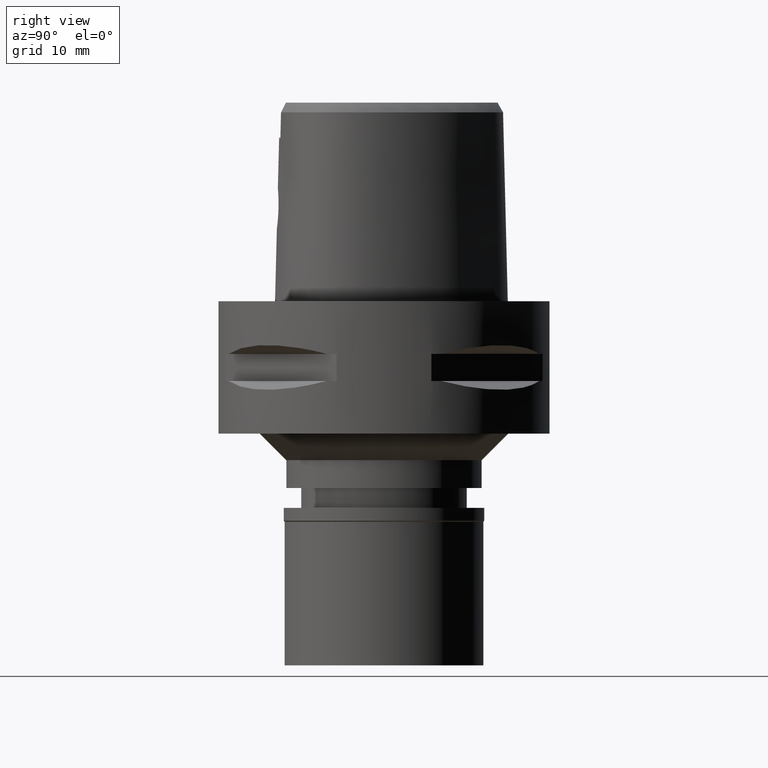
[diagram: clean part render]
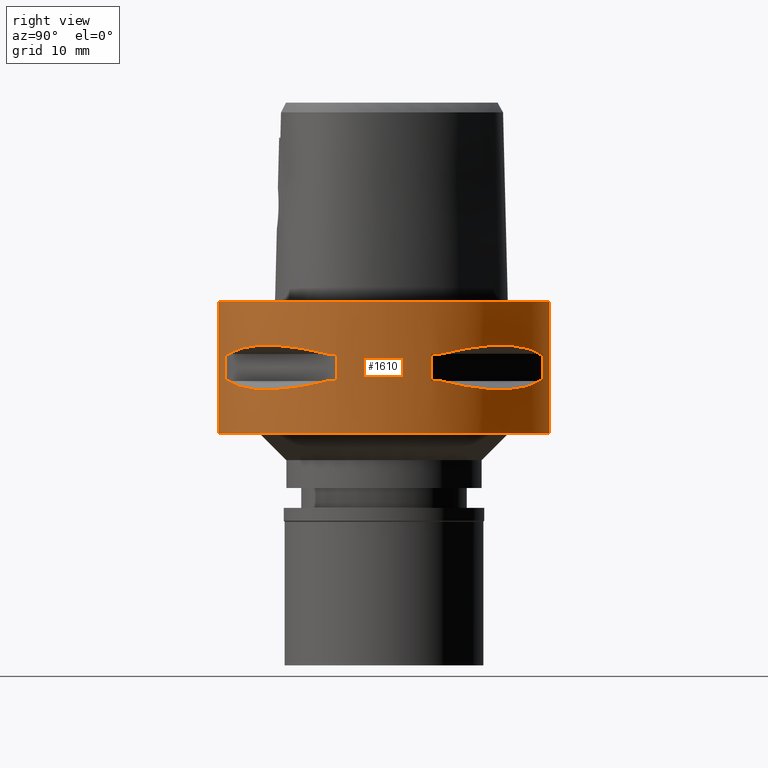
[diagram: same view with one face highlighted and labeled with its STEP entity id]
A machine part, right view. The second image highlights one B-rep face of the part: STEP entity #1610.
In plain terms, the highlighted cylindrical surface (partial cylindrical patch) has radius 25 mm, axis along (0, 0, -1).
Its self-contained STEP definition (entity closure, byte-faithful):
#12 = ORIENTED_EDGE ( 'NONE', *, *, #2781, .T. ) ;
#43 = LINE ( 'NONE', #1184, #1874 ) ;
#62 = B_SPLINE_CURVE_WITH_KNOTS ( 'NONE', 3,
 ( #2774, #4715, #2866, #3515, #2102, #3596, #4743, #1715, #221, #3174, #3202, #1409, #196, #4346, #3995, #4684, #4657, #2806, #1665, #3938, #4633, #2839, #1001, #1300 ),
 .UNSPECIFIED., .F., .F.,
 ( 4, 1, 1, 1, 1, 1, 2, 2, 2, 1, 1, 1, 1, 1, 2, 2, 4 ),
 ( 0.0000000000000000000, 0.1250000000000068834, 0.1875000000000101308, 0.2187500000000117406, 0.2343750000000125733, 0.2421875000000129341, 0.2460937500000130174, 0.2500000000000131006, 0.5000000000000111022, 0.6250000000000101030, 0.6875000000000099920, 0.7187500000000099920, 0.7343750000000099920, 0.7421875000000098810, 0.7460937500000098810, 0.7500000000000098810, 1.000000000000000000 ),
 .UNSPECIFIED. ) ;
#153 = CARTESIAN_POINT ( 'NONE',  ( 14.85488513038957592, 20.11654071401955335, -13.22076716108393413 ) ) ;
#182 = CARTESIAN_POINT ( 'NONE',  ( 21.01958685664017068, 13.53433973752500918, -13.05032380590188446 ) ) ;
#193 = EDGE_CURVE ( 'NONE', #3006, #889, #2345, .T. ) ;
#196 = CARTESIAN_POINT ( 'NONE',  ( 18.30096971348435630, -17.05439749817190176, -13.37751056790094850 ) ) ;
#221 = CARTESIAN_POINT ( 'NONE',  ( 13.53433973752400554, -21.01958685664054372, -13.05032380590162333 ) ) ;
#225 = VERTEX_POINT ( 'NONE', #2671 ) ;
#242 = CYLINDRICAL_SURFACE ( 'NONE', #4385, 25.00000000000000000 ) ;
#441 = AXIS2_PLACEMENT_3D ( 'NONE', #1394, #1728, #648 ) ;
#469 = B_SPLINE_CURVE_WITH_KNOTS ( 'NONE', 3,
 ( #4585, #976, #1644, #3131, #4614, #2706, #3084, #1261, #533, #2778 ),
 .UNSPECIFIED., .F., .F.,
 ( 4, 2, 2, 2, 4 ),
 ( 0.0000000000000000000, 0.2500000000000000000, 0.5000000000000000000, 0.7500000000000000000, 1.000000000000000000 ),
 .UNSPECIFIED. ) ;
#533 = CARTESIAN_POINT ( 'NONE',  ( 10.36318218122983481, 22.82437128822192207, -7.507495686399606960 ) ) ;
#555 = ORIENTED_EDGE ( 'NONE', *, *, #1544, .T. ) ;
#585 = CARTESIAN_POINT ( 'NONE',  ( 7.159921374230999724, -23.95277699797999915, -12.05000000000000071 ) ) ;
#619 = CARTESIAN_POINT ( 'NONE',  ( 20.02826730452214932, 15.06560254769159712, -13.27075471794772277 ) ) ;
#639 = DIRECTION ( 'NONE',  ( 0.0000000000000000000, 0.0000000000000000000, -1.000000000000000000 ) ) ;
#648 = DIRECTION ( 'NONE',  ( 0.9581110799190402094, -0.2863968549694120291, 0.0000000000000000000 ) ) ;
#668 = AXIS2_PLACEMENT_3D ( 'NONE', #3122, #4604, #1277 ) ;
#672 = EDGE_CURVE ( 'NONE', #1713, #1457, #2820, .T. ) ;
#741 = CIRCLE ( 'NONE', #2915, 25.00000000000001066 ) ;
#753 = CARTESIAN_POINT ( 'NONE',  ( 7.159921374235000080, -23.95277699797999915, -7.950000000000000178 ) ) ;
#758 = CARTESIAN_POINT ( 'NONE',  ( 8.646484890756999775, -23.45715880140000209, -12.05000000000000071 ) ) ;
#810 = CARTESIAN_POINT ( 'NONE',  ( 23.95277699797999915, 7.159921374230999724, -12.05000000000000071 ) ) ;
#819 = VERTEX_POINT ( 'NONE', #4284 ) ;
#870 = CARTESIAN_POINT ( 'NONE',  ( 0.0000000000000000000, -25.00000000000000000, 0.0000000000000000000 ) ) ;
#876 = DIRECTION ( 'NONE',  ( 0.2863968549694120291, -0.9581110799190402094, 0.0000000000000000000 ) ) ;
#879 = CARTESIAN_POINT ( 'NONE',  ( 13.62920640916679993, 20.95817024473859291, -13.06397973560673265 ) ) ;
#888 = B_SPLINE_CURVE_WITH_KNOTS ( 'NONE', 3,
 ( #4347, #2432, #1745, #4685, #1640, #3154, #4658, #1688, #2383, #4274 ),
 .UNSPECIFIED., .F., .F.,
 ( 4, 2, 2, 2, 4 ),
 ( 0.0000000000000000000, 0.2500000000000000000, 0.5000000000000000000, 0.7500000000000000000, 1.000000000000000000 ),
 .UNSPECIFIED. ) ;
#889 = VERTEX_POINT ( 'NONE', #2461 ) ;
#907 = CARTESIAN_POINT ( 'NONE',  ( 21.20561591939435786, 13.24197703503935486, -13.00691327926270446 ) ) ;
#929 = CARTESIAN_POINT ( 'NONE',  ( 21.09754014381971388, 13.41274673326716282, -13.03250796600833716 ) ) ;
#968 = FACE_OUTER_BOUND ( 'NONE', #3853, .T. ) ;
#976 = CARTESIAN_POINT ( 'NONE',  ( 22.82438450745431524, 10.36314631860615876, -7.507504930525399800 ) ) ;
#997 = EDGE_CURVE ( 'NONE', #3188, #3670, #741, .T. ) ;
#1001 = CARTESIAN_POINT ( 'NONE',  ( 22.81626994452193458, -10.38516041956038727, -12.49816953211166037 ) ) ;
#1006 = DIRECTION ( 'NONE',  ( 0.2863968549694120291, 0.9581110799190402094, 0.0000000000000000000 ) ) ;
#1036 = CARTESIAN_POINT ( 'NONE',  ( 0.0000000000000000000, 1.252201352127999809E-14, -7.950000000000000178 ) ) ;
#1057 = AXIS2_PLACEMENT_3D ( 'NONE', #4667, #2709, #4216 ) ;
#1058 = B_SPLINE_CURVE_WITH_KNOTS ( 'NONE', 3,
 ( #3110, #2787, #4311, #4621, #3554, #907, #929, #2391, #182, #2375, #619, #3575, #3953, #1608, #153, #3089, #4568, #4217, #2008, #879, #1265, #3872, #1650, #3895 ),
 .UNSPECIFIED., .F., .F.,
 ( 4, 1, 1, 1, 1, 1, 2, 2, 2, 1, 1, 1, 1, 1, 2, 2, 4 ),
 ( 0.0000000000000000000, 0.1249999999999982236, 0.1874999999999974465, 0.2187499999999970302, 0.2343749999999969469, 0.2421874999999968081, 0.2460937499999968359, 0.2499999999999968914, 0.4999999999999973355, 0.6249999999999973355, 0.6874999999999976685, 0.7187499999999978906, 0.7343749999999980016, 0.7421874999999980016, 0.7460937499999978906, 0.7499999999999978906, 1.000000000000000000 ),
 .UNSPECIFIED. ) ;
#1082 = CARTESIAN_POINT ( 'NONE',  ( 0.0000000000000000000, 25.00000000000000000, 0.0000000000000000000 ) ) ;
#1156 = DIRECTION ( 'NONE',  ( 0.0000000000000000000, 1.000000000000000000, 0.0000000000000000000 ) ) ;
#1172 = EDGE_CURVE ( 'NONE', #3543, #819, #1355, .T. ) ;
#1184 = CARTESIAN_POINT ( 'NONE',  ( 7.159921374230999724, 23.95277699797999915, -12.05000000000000071 ) ) ;
#1228 = EDGE_CURVE ( 'NONE', #3828, #225, #1998, .T. ) ;
#1243 = CARTESIAN_POINT ( 'NONE',  ( 8.646484890751999330, -23.45715880140000209, -7.949999999998999201 ) ) ;
#1254 = EDGE_CURVE ( 'NONE', #3820, #1457, #3219, .T. ) ;
#1261 = CARTESIAN_POINT ( 'NONE',  ( 11.99636231264435615, 22.00752022556853404, -7.175618606703327629 ) ) ;
#1265 = CARTESIAN_POINT ( 'NONE',  ( 13.60713573003037880, 20.97251445226597966, -13.06082541678103404 ) ) ;
#1277 = DIRECTION ( 'NONE',  ( 0.0000000000000000000, -1.000000000000000000, 0.0000000000000000000 ) ) ;
#1296 = ORIENTED_EDGE ( 'NONE', *, *, #4469, .F. ) ;
#1300 = CARTESIAN_POINT ( 'NONE',  ( 23.45715880140000209, -8.646484890751999330, -12.05000000000000071 ) ) ;
#1312 = EDGE_CURVE ( 'NONE', #225, #2145, #4779, .T. ) ;
#1322 = VECTOR ( 'NONE', #639, 1000.000000000000000 ) ;
#1337 = DIRECTION ( 'NONE',  ( 0.0000000000000000000, 0.0000000000000000000, 1.000000000000000000 ) ) ;
#1355 = CIRCLE ( 'NONE', #1057, 24.99999999999999645 ) ;
#1394 = CARTESIAN_POINT ( 'NONE',  ( 0.0000000000000000000, 1.252201352127999809E-14, -12.05000000000000071 ) ) ;
#1409 = CARTESIAN_POINT ( 'NONE',  ( 16.43106916202457057, -18.92421359264944769, -13.37747608848233760 ) ) ;
#1440 = LINE ( 'NONE', #1082, #4749 ) ;
#1457 = VERTEX_POINT ( 'NONE', #3205 ) ;
#1465 = DIRECTION ( 'NONE',  ( 0.0000000000000000000, -1.000000000000000000, 0.0000000000000000000 ) ) ;
#1498 = CARTESIAN_POINT ( 'NONE',  ( 0.0000000000000000000, 1.252201352127999809E-14, -12.05000000000000071 ) ) ;
#1529 = EDGE_CURVE ( 'NONE', #3781, #4326, #3224, .T. ) ;
#1544 = EDGE_CURVE ( 'NONE', #1775, #1945, #2735, .T. ) ;
#1601 = CARTESIAN_POINT ( 'NONE',  ( 0.0000000000000000000, 1.252201352127999809E-14, 0.0000000000000000000 ) ) ;
#1608 = CARTESIAN_POINT ( 'NONE',  ( 16.07509500019029502, 19.18226349638565509, -13.33749867751885532 ) ) ;
#1610 = ADVANCED_FACE ( 'NONE', ( #968, #2429, #2069 ), #242, .T. ) ;
#1636 = DIRECTION ( 'NONE',  ( 0.0000000000000000000, 0.0000000000000000000, -1.000000000000000000 ) ) ;
#1640 = CARTESIAN_POINT ( 'NONE',  ( 16.42437865151175558, -18.93096040781560774, -6.622505547253058289 ) ) ;
#1641 = ORIENTED_EDGE ( 'NONE', *, *, #1254, .T. ) ;
#1644 = CARTESIAN_POINT ( 'NONE',  ( 22.00754773658079344, 11.99631184311074428, -7.175632472892015556 ) ) ;
#1650 = CARTESIAN_POINT ( 'NONE',  ( 10.38516041958474645, 22.81626994451295332, -12.49816953211793802 ) ) ;
#1665 = CARTESIAN_POINT ( 'NONE',  ( 20.92801700160322298, -13.67544437571097404, -13.07054629644096444 ) ) ;
#1688 = CARTESIAN_POINT ( 'NONE',  ( 22.00752022556849496, -11.99636231264437214, -7.175618606703327629 ) ) ;
#1711 = CARTESIAN_POINT ( 'NONE',  ( 0.0000000000000000000, 1.252201352127999809E-14, 2.250000000000000000 ) ) ;
#1713 = VERTEX_POINT ( 'NONE', #4508 ) ;
#1715 = CARTESIAN_POINT ( 'NONE',  ( 13.48572973711064193, -21.05082155772163688, -13.04323036965292637 ) ) ;
#1726 = DIRECTION ( 'NONE',  ( 0.0000000000000000000, 0.0000000000000000000, 1.000000000000000000 ) ) ;
#1728 = DIRECTION ( 'NONE',  ( 0.0000000000000000000, 0.0000000000000000000, -1.000000000000000000 ) ) ;
#1745 = CARTESIAN_POINT ( 'NONE',  ( 11.99631184311069099, -22.00754773658079344, -7.175632472892012892 ) ) ;
#1753 = DIRECTION ( 'NONE',  ( 0.3458593956303108730, 0.9382863520558295534, 0.0000000000000000000 ) ) ;
#1768 = DIRECTION ( 'NONE',  ( 0.0000000000000000000, 0.0000000000000000000, -1.000000000000000000 ) ) ;
#1775 = VERTEX_POINT ( 'NONE', #2244 ) ;
#1832 = CIRCLE ( 'NONE', #441, 24.99999999999999645 ) ;
#1834 = DIRECTION ( 'NONE',  ( 0.3458593956303108730, -0.9382863520558295534, 0.0000000000000000000 ) ) ;
#1845 = EDGE_CURVE ( 'NONE', #819, #3188, #469, .T. ) ;
#1852 = ORIENTED_EDGE ( 'NONE', *, *, #1312, .T. ) ;
#1863 = ORIENTED_EDGE ( 'NONE', *, *, #193, .T. ) ;
#1874 = VECTOR ( 'NONE', #4219, 1000.000000000000000 ) ;
#1892 = AXIS2_PLACEMENT_3D ( 'NONE', #3562, #1768, #3251 ) ;
#1906 = EDGE_CURVE ( 'NONE', #3781, #2972, #2428, .T. ) ;
#1945 = VERTEX_POINT ( 'NONE', #810 ) ;
#1998 = LINE ( 'NONE', #870, #2828 ) ;
#2008 = CARTESIAN_POINT ( 'NONE',  ( 13.67544437571146609, 20.92801700160250533, -13.07054629644086674 ) ) ;
#2050 = EDGE_LOOP ( 'NONE', ( #1641, #4588, #3201, #4444, #12, #4323, #2507, #4577 ) ) ;
#2069 = FACE_BOUND ( 'NONE', #2532, .T. ) ;
#2102 = CARTESIAN_POINT ( 'NONE',  ( 12.89853354821786624, -21.41803043592453548, -12.95342092614003349 ) ) ;
#2145 = VERTEX_POINT ( 'NONE', #4193 ) ;
#2183 = ORIENTED_EDGE ( 'NONE', *, *, #3015, .F. ) ;
#2202 = CARTESIAN_POINT ( 'NONE',  ( 7.159921374230999724, 23.95277699797999915, -7.950000000000000178 ) ) ;
#2221 = ORIENTED_EDGE ( 'NONE', *, *, #4348, .F. ) ;
#2244 = CARTESIAN_POINT ( 'NONE',  ( 23.45715880140000209, 8.646484890756999775, -12.05000000000000071 ) ) ;
#2289 = ORIENTED_EDGE ( 'NONE', *, *, #3361, .T. ) ;
#2338 = CARTESIAN_POINT ( 'NONE',  ( 0.0000000000000000000, 1.252201352127999809E-14, -7.950000000000000178 ) ) ;
#2342 = CARTESIAN_POINT ( 'NONE',  ( 0.0000000000000000000, 25.00000000000000000, 0.0000000000000000000 ) ) ;
#2345 = CIRCLE ( 'NONE', #3909, 24.99999999999999645 ) ;
#2375 = CARTESIAN_POINT ( 'NONE',  ( 21.00321793043583796, 13.55971422200765630, -13.05400030967367897 ) ) ;
#2379 = VERTEX_POINT ( 'NONE', #2627 ) ;
#2383 = CARTESIAN_POINT ( 'NONE',  ( 22.82437128822188654, -10.36318218122986856, -7.507495686399606960 ) ) ;
#2391 = CARTESIAN_POINT ( 'NONE',  ( 21.05082155772089436, 13.48572973711263323, -13.04323036965343618 ) ) ;
#2428 = CIRCLE ( 'NONE', #3525, 24.99999999999999645 ) ;
#2429 = FACE_BOUND ( 'NONE', #2050, .T. ) ;
#2432 = CARTESIAN_POINT ( 'NONE',  ( 10.36314631860608593, -22.82438450745432945, -7.507504930525394471 ) ) ;
#2435 = CIRCLE ( 'NONE', #2678, 25.00000000000000000 ) ;
#2461 = CARTESIAN_POINT ( 'NONE',  ( 8.646484890751999330, 23.45715880140000209, -12.05000000000000071 ) ) ;
#2491 = CARTESIAN_POINT ( 'NONE',  ( 0.0000000000000000000, 1.252201352127999809E-14, -12.05000000000000071 ) ) ;
#2507 = ORIENTED_EDGE ( 'NONE', *, *, #1906, .T. ) ;
#2532 = EDGE_LOOP ( 'NONE', ( #4148, #2548, #1863, #2183, #555, #2221, #3717, #2744 ) ) ;
#2539 = DIRECTION ( 'NONE',  ( 0.0000000000000000000, 0.0000000000000000000, -1.000000000000000000 ) ) ;
#2548 = ORIENTED_EDGE ( 'NONE', *, *, #3898, .F. ) ;
#2627 = CARTESIAN_POINT ( 'NONE',  ( 23.45715880140000209, -8.646484890751999330, -12.05000000000000071 ) ) ;
#2671 = CARTESIAN_POINT ( 'NONE',  ( 0.0000000000000000000, -25.00000000000000000, -20.00000000000000000 ) ) ;
#2678 = AXIS2_PLACEMENT_3D ( 'NONE', #1601, #4096, #1156 ) ;
#2706 = CARTESIAN_POINT ( 'NONE',  ( 16.42437865151178045, 18.93096040781560063, -6.622496303226939496 ) ) ;
#2709 = DIRECTION ( 'NONE',  ( 0.0000000000000000000, 0.0000000000000000000, 1.000000000000000000 ) ) ;
#2735 = CIRCLE ( 'NONE', #1892, 25.00000000000001066 ) ;
#2744 = ORIENTED_EDGE ( 'NONE', *, *, #1845, .T. ) ;
#2774 = CARTESIAN_POINT ( 'NONE',  ( 8.646484890756999775, -23.45715880140000209, -12.05000000000000071 ) ) ;
#2778 = CARTESIAN_POINT ( 'NONE',  ( 8.646484890751999330, 23.45715880140000209, -7.949999999998999201 ) ) ;
#2781 = EDGE_CURVE ( 'NONE', #4412, #4326, #3846, .T. ) ;
#2787 = CARTESIAN_POINT ( 'NONE',  ( 23.13678124604550845, 9.515641234313701347, -12.27403800213050111 ) ) ;
#2806 = CARTESIAN_POINT ( 'NONE',  ( 20.88268233906207172, -13.74471461761599400, -13.08031795579753087 ) ) ;
#2820 = LINE ( 'NONE', #4330, #3519 ) ;
#2828 = VECTOR ( 'NONE', #1636, 1000.000000000000000 ) ;
#2839 = CARTESIAN_POINT ( 'NONE',  ( 21.99328990740119139, -12.03062603421341770, -12.83394786307044022 ) ) ;
#2846 = DIRECTION ( 'NONE',  ( 0.0000000000000000000, 0.0000000000000000000, -1.000000000000000000 ) ) ;
#2860 = CARTESIAN_POINT ( 'NONE',  ( 7.159921374230999724, -23.95277699797999915, -7.950000000000000178 ) ) ;
#2866 = CARTESIAN_POINT ( 'NONE',  ( 10.78455809745186755, -22.58788056562029922, -12.56798337782941566 ) ) ;
#2915 = AXIS2_PLACEMENT_3D ( 'NONE', #1036, #1337, #1753 ) ;
#2972 = VERTEX_POINT ( 'NONE', #1243 ) ;
#2991 = AXIS2_PLACEMENT_3D ( 'NONE', #2338, #3857, #3463 ) ;
#3006 = VERTEX_POINT ( 'NONE', #3164 ) ;
#3015 = EDGE_CURVE ( 'NONE', #1775, #889, #1058, .T. ) ;
#3062 = VECTOR ( 'NONE', #4655, 1000.000000000000000 ) ;
#3071 = CARTESIAN_POINT ( 'NONE',  ( 0.0000000000000000000, -25.00000000000000000, 0.0000000000000000000 ) ) ;
#3084 = CARTESIAN_POINT ( 'NONE',  ( 15.02698525050126044, 20.06074199764951871, -6.733118915116992120 ) ) ;
#3089 = CARTESIAN_POINT ( 'NONE',  ( 14.22535762328483067, 20.56020460723039278, -13.14488865845230592 ) ) ;
#3110 = CARTESIAN_POINT ( 'NONE',  ( 23.45715880140000209, 8.646484890756999775, -12.05000000000000071 ) ) ;
#3122 = CARTESIAN_POINT ( 'NONE',  ( 0.0000000000000000000, 1.252201352127999809E-14, -20.00000000000000000 ) ) ;
#3131 = CARTESIAN_POINT ( 'NONE',  ( 20.06077645874710313, 15.02693924547574866, -6.733132781305681824 ) ) ;
#3153 = EDGE_CURVE ( 'NONE', #1713, #2379, #1832, .T. ) ;
#3154 = CARTESIAN_POINT ( 'NONE',  ( 18.93096040781557221, -16.42437865151179466, -6.622496303226939496 ) ) ;
#3164 = CARTESIAN_POINT ( 'NONE',  ( 7.159921374235000080, 23.95277699797999915, -12.05000000000000071 ) ) ;
#3174 = CARTESIAN_POINT ( 'NONE',  ( 13.55971422200820520, -21.00321793043535479, -13.05400030967370206 ) ) ;
#3179 = LINE ( 'NONE', #3971, #1322 ) ;
#3188 = VERTEX_POINT ( 'NONE', #3607 ) ;
#3198 = DIRECTION ( 'NONE',  ( 0.0000000000000000000, 0.0000000000000000000, -1.000000000000000000 ) ) ;
#3201 = ORIENTED_EDGE ( 'NONE', *, *, #3153, .T. ) ;
#3202 = CARTESIAN_POINT ( 'NONE',  ( 15.06560254765663132, -20.02826730455345583, -13.27075471794622885 ) ) ;
#3205 = CARTESIAN_POINT ( 'NONE',  ( 23.95277699797999915, -7.159921374230999724, -7.950000000000000178 ) ) ;
#3219 = CIRCLE ( 'NONE', #2991, 25.00000000000001066 ) ;
#3224 = LINE ( 'NONE', #2860, #3062 ) ;
#3251 = DIRECTION ( 'NONE',  ( 0.9382863520558295534, 0.3458593956303108730, 0.0000000000000000000 ) ) ;
#3361 = EDGE_CURVE ( 'NONE', #3406, #3828, #2435, .T. ) ;
#3406 = VERTEX_POINT ( 'NONE', #2342 ) ;
#3424 = ORIENTED_EDGE ( 'NONE', *, *, #1228, .T. ) ;
#3463 = DIRECTION ( 'NONE',  ( 0.9382863520558295534, -0.3458593956303108730, 0.0000000000000000000 ) ) ;
#3515 = CARTESIAN_POINT ( 'NONE',  ( 12.20403021317722292, -21.82791133048418786, -12.83722430138600323 ) ) ;
#3519 = VECTOR ( 'NONE', #1726, 1000.000000000000000 ) ;
#3525 = AXIS2_PLACEMENT_3D ( 'NONE', #4564, #4212, #876 ) ;
#3543 = VERTEX_POINT ( 'NONE', #4371 ) ;
#3554 = CARTESIAN_POINT ( 'NONE',  ( 21.41803043591995959, 12.89853354823032738, -12.95342092614324869 ) ) ;
#3562 = CARTESIAN_POINT ( 'NONE',  ( 0.0000000000000000000, 1.252201352127999809E-14, -12.05000000000000071 ) ) ;
#3575 = CARTESIAN_POINT ( 'NONE',  ( 18.92421359264142211, 16.43106916203626611, -13.37747608848383329 ) ) ;
#3596 = CARTESIAN_POINT ( 'NONE',  ( 13.24197703503267931, -21.20561591939681634, -13.00691327926098495 ) ) ;
#3607 = CARTESIAN_POINT ( 'NONE',  ( 8.646484890751999330, 23.45715880140000209, -7.949999999998999201 ) ) ;
#3646 = EDGE_CURVE ( 'NONE', #4412, #2379, #62, .T. ) ;
#3670 = VERTEX_POINT ( 'NONE', #2202 ) ;
#3688 = DIRECTION ( 'NONE',  ( 0.0000000000000000000, 0.0000000000000000000, -1.000000000000000000 ) ) ;
#3717 = ORIENTED_EDGE ( 'NONE', *, *, #1172, .T. ) ;
#3771 = AXIS2_PLACEMENT_3D ( 'NONE', #1498, #3688, #1834 ) ;
#3781 = VERTEX_POINT ( 'NONE', #753 ) ;
#3820 = VERTEX_POINT ( 'NONE', #3939 ) ;
#3828 = VERTEX_POINT ( 'NONE', #3071 ) ;
#3846 = CIRCLE ( 'NONE', #3771, 25.00000000000001066 ) ;
#3853 = EDGE_LOOP ( 'NONE', ( #2289, #3424, #1852, #1296 ) ) ;
#3857 = DIRECTION ( 'NONE',  ( 0.0000000000000000000, 0.0000000000000000000, 1.000000000000000000 ) ) ;
#3872 = CARTESIAN_POINT ( 'NONE',  ( 12.03062603423778754, 21.99328990739221013, -12.83394786307672675 ) ) ;
#3895 = CARTESIAN_POINT ( 'NONE',  ( 8.646484890751999330, 23.45715880140000209, -12.05000000000000071 ) ) ;
#3898 = EDGE_CURVE ( 'NONE', #3006, #3670, #43, .T. ) ;
#3909 = AXIS2_PLACEMENT_3D ( 'NONE', #2491, #2846, #1006 ) ;
#3938 = CARTESIAN_POINT ( 'NONE',  ( 20.95817024473895174, -13.62920640916654591, -13.06397973560678061 ) ) ;
#3939 = CARTESIAN_POINT ( 'NONE',  ( 23.45715880140000209, -8.646484890751999330, -7.949999999998999201 ) ) ;
#3953 = CARTESIAN_POINT ( 'NONE',  ( 17.05439749817592343, 18.30096971347850499, -13.37751056790020598 ) ) ;
#3971 = CARTESIAN_POINT ( 'NONE',  ( 23.95277699797999915, 7.159921374230999724, -7.950000000000000178 ) ) ;
#3995 = CARTESIAN_POINT ( 'NONE',  ( 20.11654071402723432, -14.85488513038430192, -13.22076716108491290 ) ) ;
#4096 = DIRECTION ( 'NONE',  ( 0.0000000000000000000, 0.0000000000000000000, -1.000000000000000000 ) ) ;
#4148 = ORIENTED_EDGE ( 'NONE', *, *, #997, .T. ) ;
#4193 = CARTESIAN_POINT ( 'NONE',  ( 0.0000000000000000000, 25.00000000000000000, -20.00000000000000000 ) ) ;
#4212 = DIRECTION ( 'NONE',  ( 0.0000000000000000000, 0.0000000000000000000, 1.000000000000000000 ) ) ;
#4216 = DIRECTION ( 'NONE',  ( 0.9581110799190402094, 0.2863968549694120291, 0.0000000000000000000 ) ) ;
#4217 = CARTESIAN_POINT ( 'NONE',  ( 13.74471461761685198, 20.88268233906084248, -13.08031795579737455 ) ) ;
#4219 = DIRECTION ( 'NONE',  ( 0.0000000000000000000, 0.0000000000000000000, 1.000000000000000000 ) ) ;
#4274 = CARTESIAN_POINT ( 'NONE',  ( 23.45715880140000209, -8.646484890751999330, -7.949999999998999201 ) ) ;
#4284 = CARTESIAN_POINT ( 'NONE',  ( 23.45715880140000209, 8.646484890751999330, -7.949999999998999201 ) ) ;
#4311 = CARTESIAN_POINT ( 'NONE',  ( 22.58788056560981516, 10.78455809748034788, -12.56798337783676267 ) ) ;
#4323 = ORIENTED_EDGE ( 'NONE', *, *, #1529, .F. ) ;
#4326 = VERTEX_POINT ( 'NONE', #585 ) ;
#4330 = CARTESIAN_POINT ( 'NONE',  ( 23.95277699797999915, -7.159921374230999724, -12.05000000000000071 ) ) ;
#4346 = CARTESIAN_POINT ( 'NONE',  ( 19.18226349639588690, -16.07509500018327131, -13.33749867752016449 ) ) ;
#4347 = CARTESIAN_POINT ( 'NONE',  ( 8.646484890751999330, -23.45715880140000209, -7.949999999998999201 ) ) ;
#4348 = EDGE_CURVE ( 'NONE', #3543, #1945, #3179, .T. ) ;
#4371 = CARTESIAN_POINT ( 'NONE',  ( 23.95277699797999915, 7.159921374235000080, -7.950000000000000178 ) ) ;
#4385 = AXIS2_PLACEMENT_3D ( 'NONE', #1711, #3198, #1465 ) ;
#4412 = VERTEX_POINT ( 'NONE', #758 ) ;
#4444 = ORIENTED_EDGE ( 'NONE', *, *, #3646, .F. ) ;
#4469 = EDGE_CURVE ( 'NONE', #3406, #2145, #1440, .T. ) ;
#4508 = CARTESIAN_POINT ( 'NONE',  ( 23.95277699797999915, -7.159921374235000080, -12.05000000000000071 ) ) ;
#4564 = CARTESIAN_POINT ( 'NONE',  ( 0.0000000000000000000, 1.252201352127999809E-14, -7.950000000000000178 ) ) ;
#4568 = CARTESIAN_POINT ( 'NONE',  ( 13.90573822668135406, 20.77616787493428774, -13.10257122103294058 ) ) ;
#4577 = ORIENTED_EDGE ( 'NONE', *, *, #4768, .T. ) ;
#4585 = CARTESIAN_POINT ( 'NONE',  ( 23.45715880140000209, 8.646484890751999330, -7.949999999998999201 ) ) ;
#4588 = ORIENTED_EDGE ( 'NONE', *, *, #672, .F. ) ;
#4604 = DIRECTION ( 'NONE',  ( 0.0000000000000000000, 0.0000000000000000000, 1.000000000000000000 ) ) ;
#4614 = CARTESIAN_POINT ( 'NONE',  ( 18.93096040781554024, 16.42437865151185505, -6.622505547253058289 ) ) ;
#4621 = CARTESIAN_POINT ( 'NONE',  ( 21.82791133047632215, 12.20403021319857828, -12.83722430139150994 ) ) ;
#4633 = CARTESIAN_POINT ( 'NONE',  ( 20.97251445226583755, -13.60713573003076071, -13.06082541678112641 ) ) ;
#4655 = DIRECTION ( 'NONE',  ( 0.0000000000000000000, 0.0000000000000000000, -1.000000000000000000 ) ) ;
#4657 = CARTESIAN_POINT ( 'NONE',  ( 20.77616787493668937, -13.90573822667970916, -13.10257122103325145 ) ) ;
#4658 = CARTESIAN_POINT ( 'NONE',  ( 20.06074199764950095, -15.02698525050125156, -6.733118915116992120 ) ) ;
#4667 = CARTESIAN_POINT ( 'NONE',  ( 0.0000000000000000000, 1.252201352127999809E-14, -7.950000000000000178 ) ) ;
#4684 = CARTESIAN_POINT ( 'NONE',  ( 20.56020460723486565, -14.22535762328174691, -13.14488865845287080 ) ) ;
#4685 = CARTESIAN_POINT ( 'NONE',  ( 15.02693924547570070, -20.06077645874711379, -6.733132781305676495 ) ) ;
#4715 = CARTESIAN_POINT ( 'NONE',  ( 9.515641234297431694, -23.13678124605150188, -12.27403800212630536 ) ) ;
#4743 = CARTESIAN_POINT ( 'NONE',  ( 13.41274673326371314, -21.09754014382099285, -13.03250796600744721 ) ) ;
#4749 = VECTOR ( 'NONE', #2539, 1000.000000000000000 ) ;
#4768 = EDGE_CURVE ( 'NONE', #2972, #3820, #888, .T. ) ;
#4779 = CIRCLE ( 'NONE', #668, 25.00000000000000000 ) ;